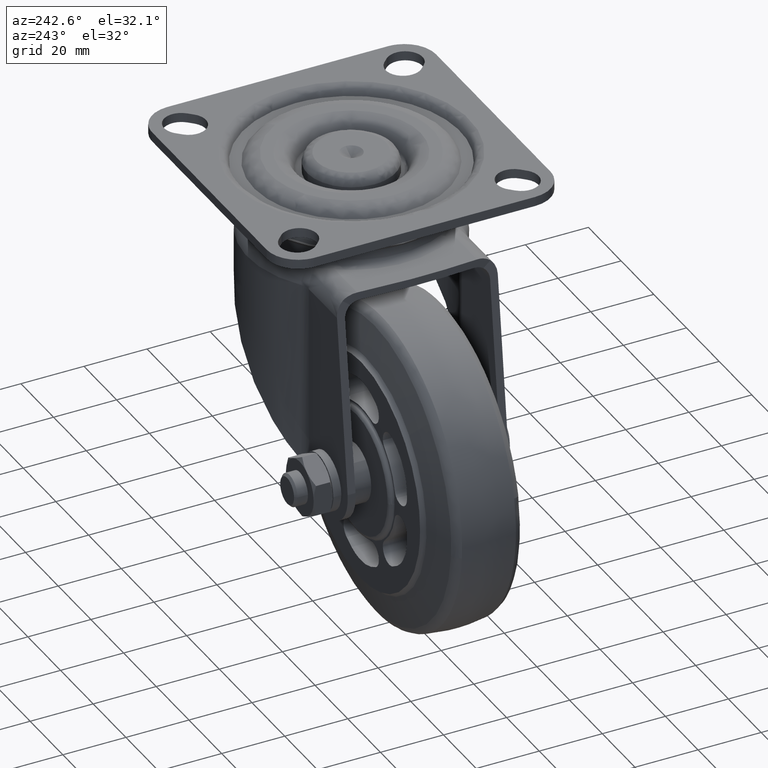
[diagram: clean part render]
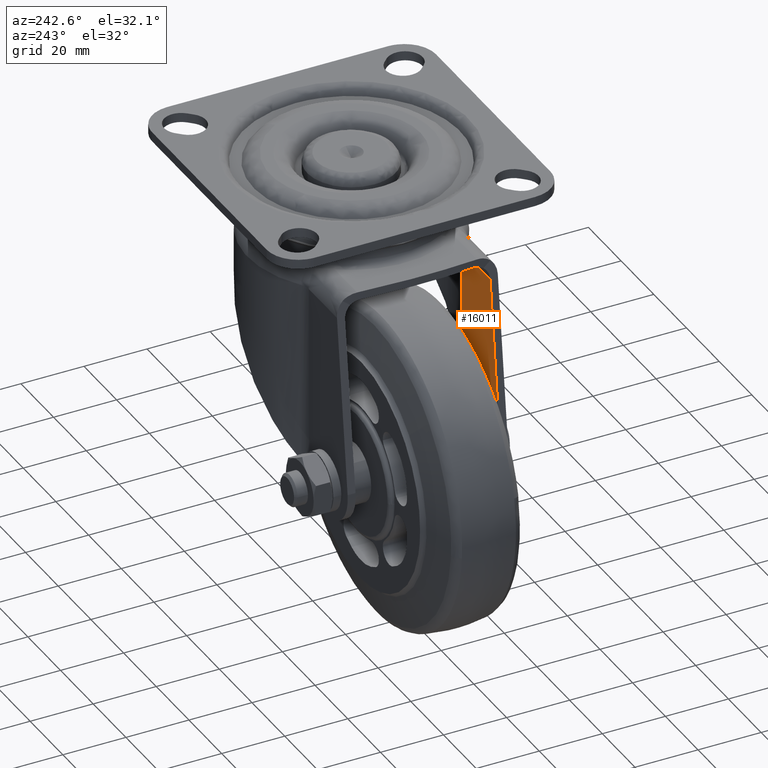
[diagram: same view with one face highlighted and labeled with its STEP entity id]
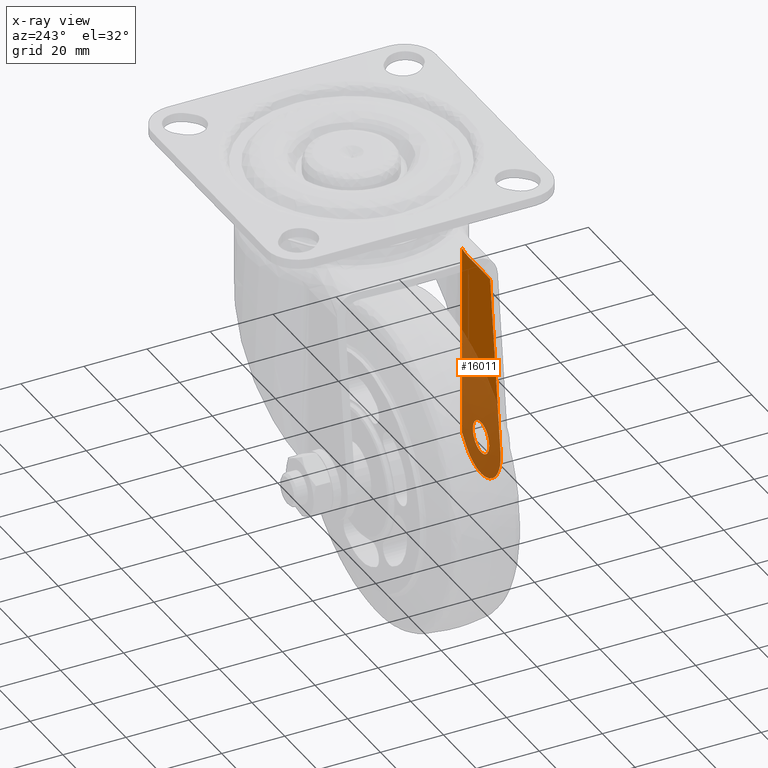
[diagram: x-ray of the same camera — body ghosted, the highlighted face saturated]
A machine part, auxiliary view. The second image highlights one B-rep face of the part: STEP entity #16011.
The next image is the same camera in x-ray: the body ghosted, the highlighted face saturated — about 54% of this face is hidden behind the body in this view.
In plain terms, the highlighted face is a freeform B-spline surface patch.
Its self-contained STEP definition (entity closure, byte-faithful):
#11009=CARTESIAN_POINT('',(3.566252685917532,-23.0,-3.504545873602682));
#11010=VERTEX_POINT('',#11009);
#11016=CARTESIAN_POINT('',(-5.0,-23.0,0.0));
#11017=VERTEX_POINT('',#11016);
#11018=CARTESIAN_POINT('',(3.566252685917533,-22.999999999999993,-3.504545873602682));
#11019=CARTESIAN_POINT('',(2.096674747179717,-23.000000000000004,-5.0));
#11020=CARTESIAN_POINT('',(0.0,-23.0,-5.0));
#11021=CARTESIAN_POINT('',(-5.000000000000001,-22.999999999999993,-5.000000000000001));
#11022=CARTESIAN_POINT('',(-5.0,-23.0,0.0));
#11030=(BOUNDED_CURVE()B_SPLINE_CURVE(2,(#11018,#11019,#11020,#11021,#11022),.UNSPECIFIED.,.F.,.U.)B_SPLINE_CURVE_WITH_KNOTS((3,2,3),(0.623683204507130,0.750000000000000,1.0),.UNSPECIFIED.)CURVE()GEOMETRIC_REPRESENTATION_ITEM()RATIONAL_B_SPLINE_CURVE((0.853569642187038,0.852010668711571,1.0,0.707106781186548,1.0))REPRESENTATION_ITEM(''));
#11031=EDGE_CURVE('',#11010,#11017,#11030,.T.);
#11033=CARTESIAN_POINT('',(3.069332082665364,-23.0,3.947049602718605));
#11034=VERTEX_POINT('',#11033);
#11035=CARTESIAN_POINT('',(-5.0,-23.0,0.0));
#11036=CARTESIAN_POINT('',(-5.000000000000001,-22.999999999999993,5.000000000000001));
#11037=CARTESIAN_POINT('',(0.0,-23.0,5.0));
#11038=CARTESIAN_POINT('',(1.715276107185114,-22.999999999999993,5.0));
#11039=CARTESIAN_POINT('',(3.069332082665363,-23.000000000000007,3.947049602718605));
#11047=(BOUNDED_CURVE()B_SPLINE_CURVE(2,(#11035,#11036,#11037,#11038,#11039),.UNSPECIFIED.,.F.,.U.)B_SPLINE_CURVE_WITH_KNOTS((3,2,3),(0.0,0.250000000000000,0.356197824868445),.UNSPECIFIED.)CURVE()GEOMETRIC_REPRESENTATION_ITEM()RATIONAL_B_SPLINE_CURVE((1.0,0.707106781186548,1.0,0.875581508973175,0.856866802910054))REPRESENTATION_ITEM(''));
#11048=EDGE_CURVE('',#11017,#11034,#11047,.T.);
#11092=CARTESIAN_POINT('',(5.0,-23.0,0.0));
#11093=VERTEX_POINT('',#11092);
#11094=CARTESIAN_POINT('',(3.069332082665363,-23.000000000000007,3.947049602718605));
#11095=CARTESIAN_POINT('',(4.999999999999999,-23.000000000000004,2.445710228727862));
#11096=CARTESIAN_POINT('',(5.0,-23.0,0.0));
#11104=(BOUNDED_CURVE()B_SPLINE_CURVE(2,(#11094,#11095,#11096),.UNSPECIFIED.,.F.,.U.)B_SPLINE_CURVE_WITH_KNOTS((3,3),(0.356197824868445,0.500000000000000),.UNSPECIFIED.)CURVE()GEOMETRIC_REPRESENTATION_ITEM()RATIONAL_B_SPLINE_CURVE((0.856866802910054,0.831525272213372,1.0))REPRESENTATION_ITEM(''));
#11105=EDGE_CURVE('',#11034,#11093,#11104,.T.);
#11107=CARTESIAN_POINT('',(5.0,-23.0,0.0));
#11108=CARTESIAN_POINT('',(4.999999999999999,-22.999999999999996,-2.045553274069728));
#11109=CARTESIAN_POINT('',(3.566252685917533,-22.999999999999993,-3.504545873602682));
#11117=(BOUNDED_CURVE()B_SPLINE_CURVE(2,(#11107,#11108,#11109),.UNSPECIFIED.,.F.,.U.)B_SPLINE_CURVE_WITH_KNOTS((3,3),(0.500000000000000,0.623683204507130),.UNSPECIFIED.)CURVE()GEOMETRIC_REPRESENTATION_ITEM()RATIONAL_B_SPLINE_CURVE((1.0,0.855096112474977,0.853569642187038))REPRESENTATION_ITEM(''));
#11118=EDGE_CURVE('',#11093,#11010,#11117,.T.);
#14726=CARTESIAN_POINT('',(11.775535386729960,-23.0,56.360445511685512));
#14727=VERTEX_POINT('',#14726);
#14858=CARTESIAN_POINT('',(8.314926047385789,-23.0,55.699997000000003));
#14859=VERTEX_POINT('',#14858);
#14885=CARTESIAN_POINT('',(8.314926047385789,-23.0,55.699997000000003));
#14886=CARTESIAN_POINT('',(8.612550035277129,-23.000000000000011,55.699997000000010));
#14887=CARTESIAN_POINT('',(8.907785241013729,-22.999999999999979,55.714537121974530));
#14888=CARTESIAN_POINT('',(9.493773851300968,-22.999999999999979,55.770897348646884));
#14889=CARTESIAN_POINT('',(9.784526274341539,-22.999999999999979,55.812723427633983));
#14890=CARTESIAN_POINT('',(10.361650913103590,-22.999999999999989,55.923037183262792));
#14891=CARTESIAN_POINT('',(10.648023486227640,-22.999999999999989,55.991522684454111));
#14892=CARTESIAN_POINT('',(11.074238114261380,-23.0,56.114606721317713));
#14893=CARTESIAN_POINT('',(11.215854966775980,-22.999999999999989,56.159071875136213));
#14894=CARTESIAN_POINT('',(11.497489009580081,-22.999999999999989,56.254828219865892));
#14895=CARTESIAN_POINT('',(11.637114761710389,-23.0,56.305980678184667));
#14896=CARTESIAN_POINT('',(11.775535386730001,-23.0,56.360445511685512));
#14897=B_SPLINE_CURVE_WITH_KNOTS('',3,(#14885,#14886,#14887,#14888,#14889,#14890,#14891,#14892,#14893,#14894,#14895,#14896),.UNSPECIFIED.,.F.,.U.,(4,2,2,2,2,4),(0.0,0.250000000000000,0.499999999999999,0.749999999999999,0.874999999999999,1.0),.UNSPECIFIED.);
#14898=EDGE_CURVE('',#14859,#14727,#14897,.T.);
#14940=CARTESIAN_POINT('',(-5.529442280087910,-23.0,55.699997000000103));
#14941=VERTEX_POINT('',#14940);
#14942=CARTESIAN_POINT('',(-5.529442280087910,-23.0,55.699997000000103));
#14943=CARTESIAN_POINT('',(8.314926047385789,-23.0,55.699997000000003));
#14944=QUASI_UNIFORM_CURVE('',1,(#14942,#14943),.UNSPECIFIED.,.F.,.U.);
#14945=EDGE_CURVE('',#14941,#14859,#14944,.T.);
#15022=CARTESIAN_POINT('',(11.775535386730100,-23.0,-4.813197301289820));
#15023=VERTEX_POINT('',#15022);
#15024=CARTESIAN_POINT('',(11.775535386729960,-23.0,56.360445511685512));
#15025=CARTESIAN_POINT('',(11.775535386730100,-23.0,-4.813197301289820));
#15026=QUASI_UNIFORM_CURVE('',1,(#15024,#15025),.UNSPECIFIED.,.F.,.U.);
#15027=EDGE_CURVE('',#14727,#15023,#15026,.T.);
#15815=CARTESIAN_POINT('',(8.971066188851571,-22.999999999996149,-7.969941746038311));
#15816=VERTEX_POINT('',#15815);
#15817=CARTESIAN_POINT('',(8.971066188851571,-22.999999999996149,-7.969941746038311));
#15818=CARTESIAN_POINT('',(11.775535386730100,-23.0,-4.813197301289820));
#15819=QUASI_UNIFORM_CURVE('',1,(#15817,#15818),.UNSPECIFIED.,.F.,.U.);
#15820=EDGE_CURVE('',#15816,#15023,#15819,.T.);
#15881=CARTESIAN_POINT('',(-11.917797676107821,-22.999999999996149,1.402176362430494));
#15882=VERTEX_POINT('',#15881);
#15883=CARTESIAN_POINT('',(8.971066188851571,-22.999999999996149,-7.969941746038309));
#15884=CARTESIAN_POINT('',(3.122332968449645,-22.999999999996145,-14.553349067332990));
#15885=CARTESIAN_POINT('',(-4.912225165265642,-22.999999999996149,-10.948517887172260));
#15886=CARTESIAN_POINT('',(-12.946783298980932,-22.999999999996145,-7.343686707011536));
#15887=CARTESIAN_POINT('',(-11.917797676107829,-22.999999999996149,1.402176362430490));
#15895=(BOUNDED_CURVE()B_SPLINE_CURVE(2,(#15883,#15884,#15885,#15886,#15887),.UNSPECIFIED.,.F.,.U.)B_SPLINE_CURVE_WITH_KNOTS((3,2,3),(0.0,0.500000000000000,1.0),.UNSPECIFIED.)CURVE()GEOMETRIC_REPRESENTATION_ITEM()RATIONAL_B_SPLINE_CURVE((1.0,0.806206722942904,1.0,0.806206722942904,1.0))REPRESENTATION_ITEM(''));
#15896=EDGE_CURVE('',#15816,#15882,#15895,.T.);
#15988=CARTESIAN_POINT('',(12.962802888623109,-23.0,-15.414603033365060));
#15989=CARTESIAN_POINT('',(-13.180848151722810,-23.0,-15.414603033365060));
#15990=CARTESIAN_POINT('',(12.962802888623109,-23.0,59.775051414071477));
#15991=CARTESIAN_POINT('',(-13.180848151722810,-23.0,59.775051414071477));
#15992=B_SPLINE_SURFACE_WITH_KNOTS('',1,1,((#15988,#15990),(#15989,#15991)),.UNSPECIFIED.,.F.,.F.,.U.,(2,2),(2,2),(0.0,26.143651040345919),(0.0,75.189654447436538),.UNSPECIFIED.);
#15993=CARTESIAN_POINT('',(-5.529442280087910,-23.0,55.699997000000103));
#15994=CARTESIAN_POINT('',(-11.917797676107821,-22.999999999996149,1.402176362430494));
#15995=QUASI_UNIFORM_CURVE('',1,(#15993,#15994),.UNSPECIFIED.,.F.,.U.);
#15996=EDGE_CURVE('',#14941,#15882,#15995,.T.);
#15997=ORIENTED_EDGE('',*,*,#15996,.F.);
#15998=ORIENTED_EDGE('',*,*,#14945,.T.);
#15999=ORIENTED_EDGE('',*,*,#14898,.T.);
#16000=ORIENTED_EDGE('',*,*,#15027,.T.);
#16001=ORIENTED_EDGE('',*,*,#15820,.F.);
#16002=ORIENTED_EDGE('',*,*,#15896,.T.);
#16003=EDGE_LOOP('',(#15997,#15998,#15999,#16000,#16001,#16002));
#16004=FACE_OUTER_BOUND('',#16003,.T.);
#16005=ORIENTED_EDGE('',*,*,#11118,.F.);
#16006=ORIENTED_EDGE('',*,*,#11105,.F.);
#16007=ORIENTED_EDGE('',*,*,#11048,.F.);
#16008=ORIENTED_EDGE('',*,*,#11031,.F.);
#16009=EDGE_LOOP('',(#16005,#16006,#16007,#16008));
#16010=FACE_BOUND('',#16009,.T.);
#16011=ADVANCED_FACE('',(#16004,#16010),#15992,.T.);